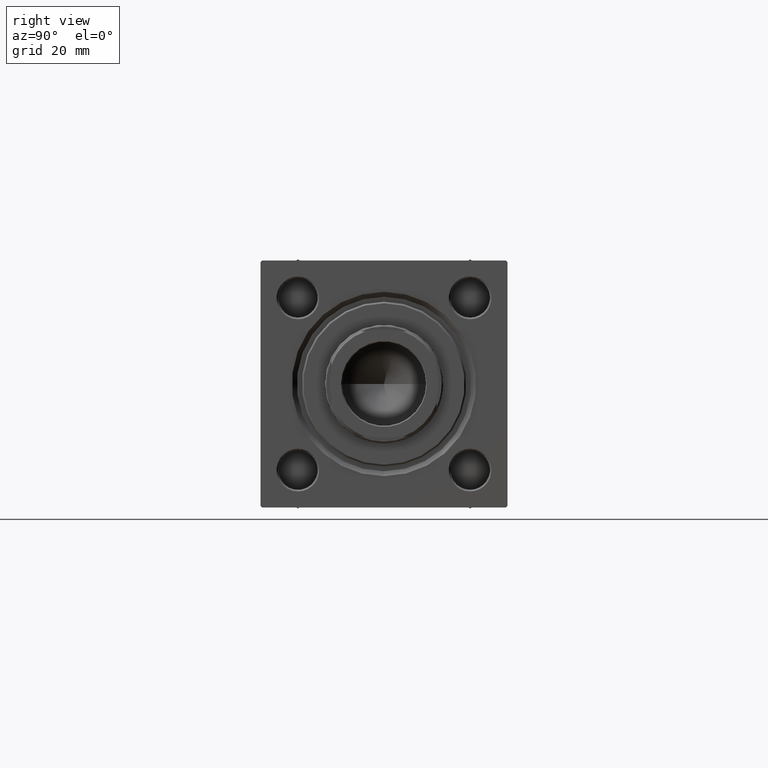
[diagram: clean part render]
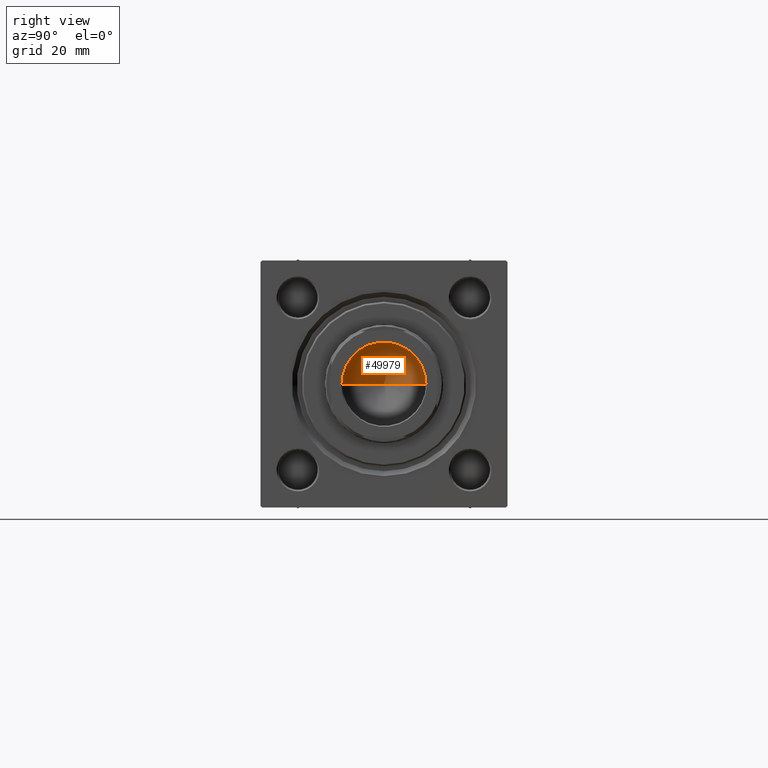
[diagram: same view with one face highlighted and labeled with its STEP entity id]
A machine part, right view. The second image highlights one B-rep face of the part: STEP entity #49979.
In plain terms, the highlighted conical surface has half-angle 59 deg.
Its self-contained STEP definition (entity closure, byte-faithful):
#2731 = VECTOR ( 'NONE', #24435, 1000.000000000000000 ) ;
#3270 = CARTESIAN_POINT ( 'NONE',  ( -12.74999999999998934, 1.561424668912873928E-15, 97.00000000000001421 ) ) ;
#3345 = CARTESIAN_POINT ( 'NONE',  ( -12.74999999999998934, 1.561424668912873928E-15, 97.00000000000001421 ) ) ;
#4858 = CARTESIAN_POINT ( 'NONE',  ( 0.000000000000000000, 0.000000000000000000, 97.00000000000001421 ) ) ;
#11758 = CARTESIAN_POINT ( 'NONE',  ( 12.74999999999998934, 0.000000000000000000, 97.00000000000001421 ) ) ;
#13198 = CIRCLE ( 'NONE', #49704, 12.74999999999998934 ) ;
#13557 = EDGE_CURVE ( 'NONE', #28039, #18752, #46537, .T. ) ;
#14469 = DIRECTION ( 'NONE',  ( 1.000000000000000000, 0.000000000000000000, 0.000000000000000000 ) ) ;
#14763 = EDGE_LOOP ( 'NONE', ( #39398, #26137, #36405 ) ) ;
#18279 = CARTESIAN_POINT ( 'NONE',  ( 0.000000000000000000, 0.000000000000000000, 97.00000000000001421 ) ) ;
#18752 = VERTEX_POINT ( 'NONE', #20820 ) ;
#18814 = DIRECTION ( 'NONE',  ( -0.8571673007021117785, 1.049727191138617956E-16, 0.5150380749100550437 ) ) ;
#20820 = CARTESIAN_POINT ( 'NONE',  ( 12.74999999999998934, 0.000000000000000000, 97.00000000000001421 ) ) ;
#20833 = DIRECTION ( 'NONE',  ( 1.000000000000000000, 0.000000000000000000, 0.000000000000000000 ) ) ;
#22082 = FACE_OUTER_BOUND ( 'NONE', #14763, .T. ) ;
#24435 = DIRECTION ( 'NONE',  ( 0.8571673007021117785, 0.000000000000000000, 0.5150380749100550437 ) ) ;
#26137 = ORIENTED_EDGE ( 'NONE', *, *, #40676, .T. ) ;
#28039 = VERTEX_POINT ( 'NONE', #29126 ) ;
#28211 = DIRECTION ( 'NONE',  ( -0.000000000000000000, -0.000000000000000000, 1.000000000000000000 ) ) ;
#29126 = CARTESIAN_POINT ( 'NONE',  ( -1.410643066818227497E-14, 0.000000000000000000, 89.33902710739862130 ) ) ;
#30752 = LINE ( 'NONE', #3345, #47393 ) ;
#35292 = EDGE_CURVE ( 'NONE', #43248, #18752, #13198, .T. ) ;
#36405 = ORIENTED_EDGE ( 'NONE', *, *, #35292, .T. ) ;
#37582 = DIRECTION ( 'NONE',  ( -0.000000000000000000, -0.000000000000000000, 1.000000000000000000 ) ) ;
#38673 = AXIS2_PLACEMENT_3D ( 'NONE', #18279, #37582, #14469 ) ;
#39398 = ORIENTED_EDGE ( 'NONE', *, *, #13557, .F. ) ;
#39464 = CONICAL_SURFACE ( 'NONE', #38673, 12.74999999999998934, 1.029744258676653423 ) ;
#40676 = EDGE_CURVE ( 'NONE', #28039, #43248, #30752, .T. ) ;
#43248 = VERTEX_POINT ( 'NONE', #3270 ) ;
#46537 = LINE ( 'NONE', #11758, #2731 ) ;
#47393 = VECTOR ( 'NONE', #18814, 1000.000000000000000 ) ;
#49704 = AXIS2_PLACEMENT_3D ( 'NONE', #4858, #28211, #20833 ) ;
#49979 = ADVANCED_FACE ( 'NONE', ( #22082 ), #39464, .F. ) ;